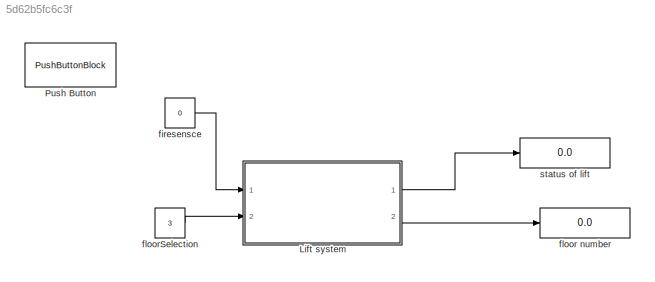
MODEL slx_5d62b5fc6c3f
KIND model
CONFIG AbsTol = auto
CONFIG EnableMultiTasking = off
CONFIG FixedStep = auto
CONFIG MaxStep = auto
CONFIG MinStep = auto
CONFIG RelTol = 1e-3
CONFIG SampleTimeConstraint = Unconstrained
CONFIG Solver = VariableStepAuto
CONFIG SolverName = VariableStepAuto
CONFIG StartTime = 0.0
CONFIG StopTime = inf
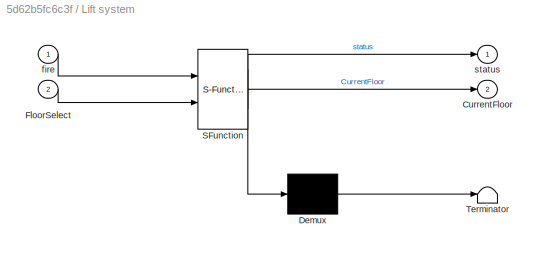
BLOCK [SubSystem] Lift system
  ErrorFcn = Stateflow.Translate.translate
  PermitHierarchicalResolution = ExplicitOnly
  Ports = [2, 2]
  RequestExecContextInheritance = off
  SFBlockType = Chart
  TreatAsAtomicUnit = on
BLOCK [Demux] Lift system/ Demux 
  Outputs = 1
  Ports = [1, 1]
BLOCK [S-Function] Lift system/ SFunction 
  EnableBusSupport = on
  FunctionName = sf_sfun
  PortCounts = [2 3]
  Ports = [2, 3]
  SFcnIsStateOwnerBlock = off
  SFunctionDeploymentMode = off
  Tag = Stateflow S-Function 3
BLOCK [Terminator] Lift system/ Terminator 
BLOCK [Outport] Lift system/CurrentFloor
  Port = 2
BLOCK [Inport] Lift system/FloorSelect
  Port = 2
BLOCK [Inport] Lift system/fire
BLOCK [Outport] Lift system/status
BLOCK [PushButtonBlock] Push Button
BLOCK [Constant] firesensce
  Value = 0
BLOCK [Display] floor number
  Decimation = 1
  Ports = [1]
BLOCK [Constant] floorSelection
  Value = 3
BLOCK [Display] status of lift
  Decimation = 1
  Ports = [1]
LINE Lift system:1 -> status of lift:1
LINE Lift system:2 -> floor number:1
LINE firesensce:1 -> Lift system:1
LINE floorSelection:1 -> Lift system:2
CHART Lift system states=12 transitions=29
  STATE_LABEL 'Alarm\nduring:\nAlarmStatus = fire;\nFireStatusCheck(AlarmStatus);\n'
  STATE_LABEL 'LiftOperation\nentry:\nstatus=0;'
  STATE_LABEL 'LiftFunctionOn'
  STATE_LABEL 'GroundFloor\nentry:\nstatus=1;\nduring:\nCurrentFloor=0;\nFloorCheck(CurrentFloor);\nexit:\nstatus=0;\n'
  STATE_LABEL 'FirstFloor\nentry:\nstatus=1;\nduring:\nCurrentFloor=1;\nFloorCheck(CurrentFloor);\nexit:\nstatus=0;\n'
  STATE_LABEL 'SecondFloor\nentry:\nstatus=1;\nduring:\nCurrentFloor=2;\nFloorCheck(CurrentFloor);\nexit:\nstatus=0;\nafter(1,sec);\n'
  STATE_LABEL 'ThirdFloor\nentry:\nstatus=1;\nduring:\nCurrentFloor=3;\nFloorCheck(CurrentFloor);\nexit:\nstatus=0;\nafter(1,sec);'
  STATE_LABEL 'FourthFloor\nentry:\nstatus=1\nduring:\nCurrentFloor=4;\nFloorCheck(CurrentFloor);\nexit:\nstatus=0;\n'
  STATE_LABEL 'FifthFloor\nentry:\nstatus=1;\nduring:\nCurrentFloor=5;\nFloorCheck(CurrentFloor);\nexit:\nstatus=0;\n'
  STATE_LABEL 'up'
  STATE_LABEL 'down'
  STATE_LABEL 'up'
  STATE_LABEL 'down'
  STATE_LABEL 'up'
  STATE_LABEL 'down'
  STATE_LABEL 'up'
  STATE_LABEL 'down'
  STATE_LABEL 'up'
  STATE_LABEL 'down'
  STATE_LABEL 'H'
  STATE_LABEL 'LiftFunctionOff\nen:\nstatus=0;'
  STATE_LABEL '[signal==0]'
  STATE_LABEL '[signal==1]'
  STATE_LABEL 'LiftFunctionOn'
  STATE_LABEL 'GroundFloor\nentry:\nstatus=1;\nduring:\nCurrentFloor=0;\nFloorCheck(CurrentFloor);\nexit:\nstatus=0;\n'
  STATE_LABEL 'FirstFloor\nentry:\nstatus=1;\nduring:\nCurrentFloor=1;\nFloorCheck(CurrentFloor);\nexit:\nstatus=0;\n'
  STATE_LABEL 'SecondFloor\nentry:\nstatus=1;\nduring:\nCurrentFloor=2;\nFloorCheck(CurrentFloor);\nexit:\nstatus=0;\nafter(1,sec);\n'
  STATE_LABEL 'ThirdFloor\nentry:\nstatus=1;\nduring:\nCurrentFloor=3;\nFloorCheck(CurrentFloor);\nexit:\nstatus=0;\nafter(1,sec);'
  STATE_LABEL 'FourthFloor\nentry:\nstatus=1\nduring:\nCurrentFloor=4;\nFloorCheck(CurrentFloor);\nexit:\nstatus=0;\n'
  STATE_LABEL 'FifthFloor\nentry:\nstatus=1;\nduring:\nCurrentFloor=5;\nFloorCheck(CurrentFloor);\nexit:\nstatus=0;\n'
  STATE_LABEL 'up'
  STATE_LABEL 'down'
  STATE_LABEL 'up'
  STATE_LABEL 'down'
  STATE_LABEL 'up'
  STATE_LABEL 'down'
  STATE_LABEL 'up'
  STATE_LABEL 'down'
  STATE_LABEL 'up'
  STATE_LABEL 'down'
CHART  states=0 transitions=0
